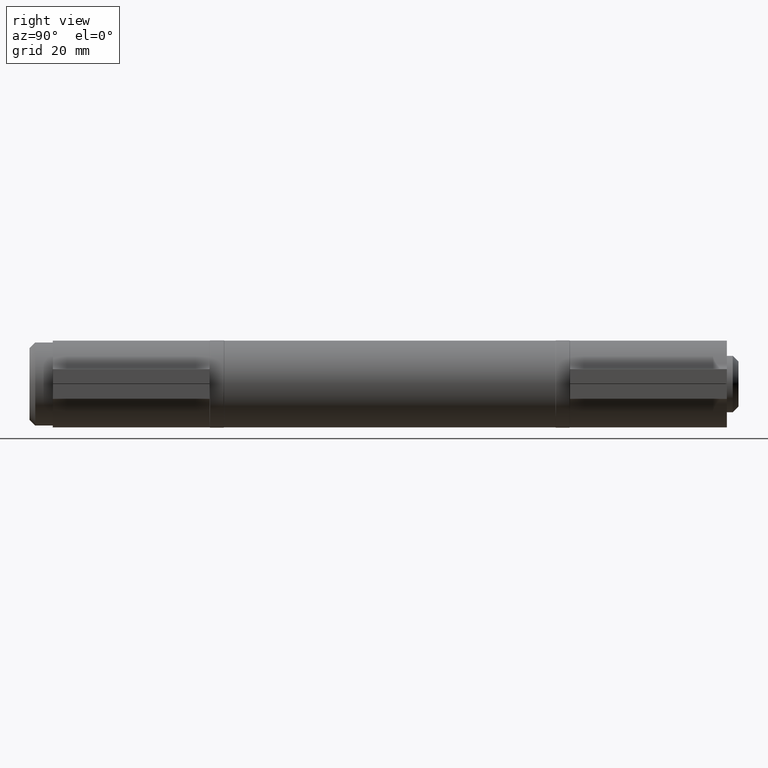
[diagram: clean part render]
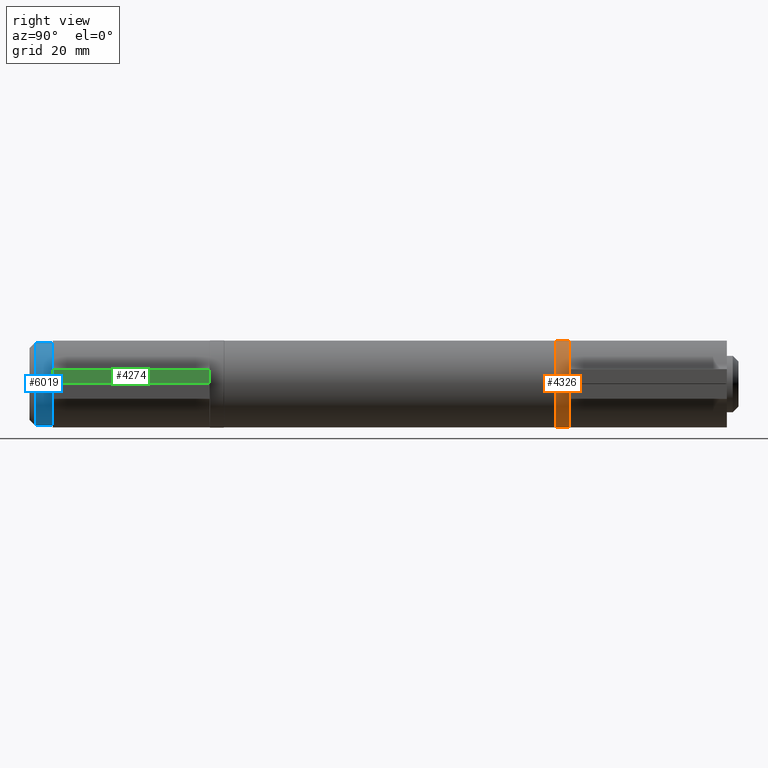
[diagram: same view with three faces highlighted in distinct colors, each labeled with its STEP entity id]
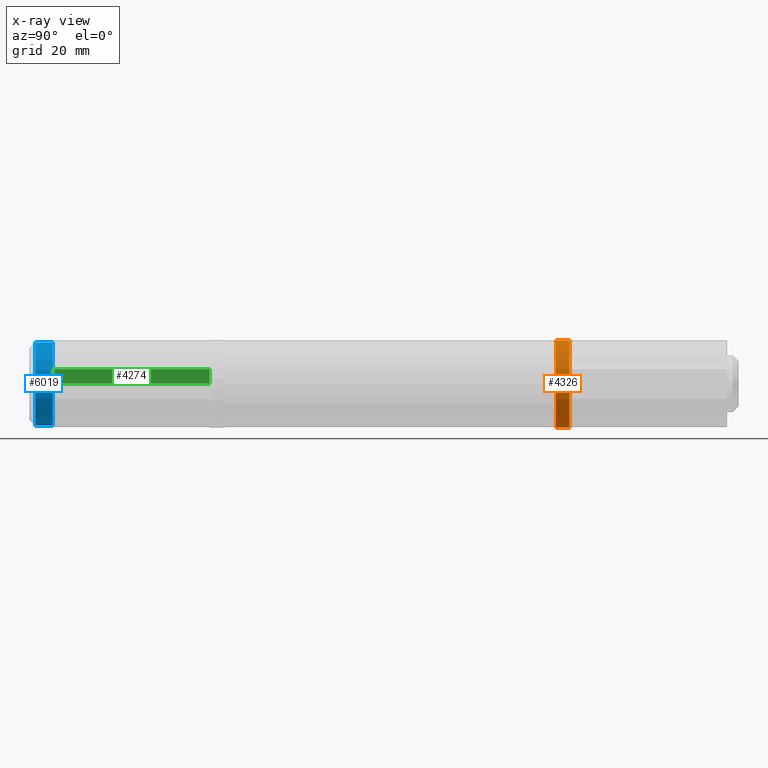
[diagram: x-ray of the same camera — body ghosted, the three highlighted faces saturated]
A machine part, right view with three faces highlighted in distinct colors.
The next image is the same camera in x-ray (body ghosted, the three faces saturated) — at least one of them is partly hidden behind the body in this view.
Their STEP definitions:

[orange] entity #4326 — the highlighted cylindrical surface (bore or boss wall) has radius 7.5 mm, axis along (-0, -1, -0).
#98 = EDGE_LOOP ( 'NONE', ( #6802 ) ) ;
#1006 = DIRECTION ( 'NONE',  ( -0.000000000000000000, -1.000000000000000000, -0.000000000000000000 ) ) ;
#1089 = CIRCLE ( 'NONE', #5492, 7.500000000000000000 ) ;
#2340 = AXIS2_PLACEMENT_3D ( 'NONE', #7539, #2903, #3666 ) ;
#2509 = VERTEX_POINT ( 'NONE', #10937 ) ;
#2783 = CARTESIAN_POINT ( 'NONE',  ( 0.000000000000000000, 1.149999999999999911, 0.000000000000000000 ) ) ;
#2903 = DIRECTION ( 'NONE',  ( 0.000000000000000000, 1.000000000000000000, 0.000000000000000000 ) ) ;
#3647 = DIRECTION ( 'NONE',  ( 0.000000000000000000, 0.000000000000000000, 1.000000000000000000 ) ) ;
#3666 = DIRECTION ( 'NONE',  ( 0.000000000000000000, 0.000000000000000000, 1.000000000000000000 ) ) ;
#3804 = EDGE_LOOP ( 'NONE', ( #6964 ) ) ;
#4326 = ADVANCED_FACE ( 'NONE', ( #9301, #4768 ), #6228, .T. ) ;
#4768 = FACE_OUTER_BOUND ( 'NONE', #3804, .T. ) ;
#5492 = AXIS2_PLACEMENT_3D ( 'NONE', #2783, #8343, #3647 ) ;
#5775 = AXIS2_PLACEMENT_3D ( 'NONE', #6484, #1006, #7417 ) ;
#6228 = CYLINDRICAL_SURFACE ( 'NONE', #5775, 7.500000000000000000 ) ;
#6484 = CARTESIAN_POINT ( 'NONE',  ( 0.000000000000000000, 1.250000000000000000, 0.000000000000000000 ) ) ;
#6802 = ORIENTED_EDGE ( 'NONE', *, *, #7026, .T. ) ;
#6964 = ORIENTED_EDGE ( 'NONE', *, *, #9818, .T. ) ;
#7026 = EDGE_CURVE ( 'NONE', #7258, #7258, #7048, .T. ) ;
#7048 = CIRCLE ( 'NONE', #2340, 7.500000000000000000 ) ;
#7142 = CARTESIAN_POINT ( 'NONE',  ( 0.000000000000000000, -1.150000000000000133, 7.500000000000000000 ) ) ;
#7258 = VERTEX_POINT ( 'NONE', #7142 ) ;
#7417 = DIRECTION ( 'NONE',  ( 0.000000000000000000, 0.000000000000000000, -1.000000000000000000 ) ) ;
#7539 = CARTESIAN_POINT ( 'NONE',  ( 0.000000000000000000, -1.150000000000000133, 0.000000000000000000 ) ) ;
#8343 = DIRECTION ( 'NONE',  ( -0.000000000000000000, -1.000000000000000000, -0.000000000000000000 ) ) ;
#9301 = FACE_OUTER_BOUND ( 'NONE', #98, .T. ) ;
#9818 = EDGE_CURVE ( 'NONE', #2509, #2509, #1089, .T. ) ;
#10937 = CARTESIAN_POINT ( 'NONE',  ( 0.000000000000000000, 1.149999999999999911, 7.500000000000000000 ) ) ;

[blue] entity #6019 — the highlighted cylindrical surface (bore or boss wall) has radius 7.15 mm, axis along (0, 1, 0).
#129 = DIRECTION ( 'NONE',  ( -0.000000000000000000, 1.000000000000000000, -0.000000000000000000 ) ) ;
#360 = VERTEX_POINT ( 'NONE', #9685 ) ;
#954 = CARTESIAN_POINT ( 'NONE',  ( 1.812477262738082717E-14, -60.00000000000000000, 0.000000000000000000 ) ) ;
#1587 = CARTESIAN_POINT ( 'NONE',  ( 1.812477262738082717E-14, -60.00000000000000000, 7.149999999999999467 ) ) ;
#1784 = ORIENTED_EDGE ( 'NONE', *, *, #4382, .F. ) ;
#2232 = VERTEX_POINT ( 'NONE', #1587 ) ;
#2793 = CARTESIAN_POINT ( 'NONE',  ( 1.812477262738082717E-14, -56.99999999999999289, 0.000000000000000000 ) ) ;
#3708 = AXIS2_PLACEMENT_3D ( 'NONE', #954, #9201, #4643 ) ;
#4382 = EDGE_CURVE ( 'NONE', #360, #360, #9871, .T. ) ;
#4643 = DIRECTION ( 'NONE',  ( 0.000000000000000000, 0.000000000000000000, 1.000000000000000000 ) ) ;
#5949 = EDGE_LOOP ( 'NONE', ( #1784 ) ) ;
#6019 = ADVANCED_FACE ( 'NONE', ( #8533, #10432 ), #7062, .T. ) ;
#6578 = DIRECTION ( 'NONE',  ( 0.000000000000000000, 0.000000000000000000, 1.000000000000000000 ) ) ;
#7062 = CYLINDRICAL_SURFACE ( 'NONE', #9686, 7.149999999999999467 ) ;
#8034 = AXIS2_PLACEMENT_3D ( 'NONE', #2793, #129, #6578 ) ;
#8354 = EDGE_CURVE ( 'NONE', #2232, #2232, #8739, .T. ) ;
#8533 = FACE_OUTER_BOUND ( 'NONE', #10859, .T. ) ;
#8657 = ORIENTED_EDGE ( 'NONE', *, *, #8354, .T. ) ;
#8739 = CIRCLE ( 'NONE', #3708, 7.149999999999999467 ) ;
#9201 = DIRECTION ( 'NONE',  ( -0.000000000000000000, 1.000000000000000000, -0.000000000000000000 ) ) ;
#9685 = CARTESIAN_POINT ( 'NONE',  ( 1.812477262738082717E-14, -56.99999999999999289, 7.149999999999999467 ) ) ;
#9686 = AXIS2_PLACEMENT_3D ( 'NONE', #10830, #9914, #9953 ) ;
#9871 = CIRCLE ( 'NONE', #8034, 7.149999999999999467 ) ;
#9914 = DIRECTION ( 'NONE',  ( -0.000000000000000000, 1.000000000000000000, -0.000000000000000000 ) ) ;
#9953 = DIRECTION ( 'NONE',  ( 0.000000000000000000, 0.000000000000000000, 1.000000000000000000 ) ) ;
#10432 = FACE_OUTER_BOUND ( 'NONE', #5949, .T. ) ;
#10830 = CARTESIAN_POINT ( 'NONE',  ( 1.812477262738082717E-14, 61.00000000000000000, 0.000000000000000000 ) ) ;
#10859 = EDGE_LOOP ( 'NONE', ( #8657 ) ) ;

[green] entity #4274 — the highlighted planar face has unit normal (-1, 0, 0).
#240 = CARTESIAN_POINT ( 'NONE',  ( 2.549999999999999822, 13.50000000000000000, -13.50000000000000178 ) ) ;
#382 = CARTESIAN_POINT ( 'NONE',  ( 0.04999999999999966971, 13.50000000000000000, -13.50000000000000178 ) ) ;
#972 = DIRECTION ( 'NONE',  ( 1.000000000000000000, 0.000000000000000000, -0.000000000000000000 ) ) ;
#1078 = LINE ( 'NONE', #240, #1370 ) ;
#1235 = CARTESIAN_POINT ( 'NONE',  ( 2.549999999999999822, -13.50000000000000000, -13.50000000000000178 ) ) ;
#1370 = VECTOR ( 'NONE', #9485, 1000.000000000000000 ) ;
#2068 = DIRECTION ( 'NONE',  ( -0.000000000000000000, -1.000000000000000000, -0.000000000000000000 ) ) ;
#2165 = VERTEX_POINT ( 'NONE', #5238 ) ;
#2189 = ORIENTED_EDGE ( 'NONE', *, *, #10225, .T. ) ;
#2652 = VECTOR ( 'NONE', #4754, 1000.000000000000000 ) ;
#3271 = VERTEX_POINT ( 'NONE', #9568 ) ;
#3464 = AXIS2_PLACEMENT_3D ( 'NONE', #10238, #11157, #972 ) ;
#3585 = EDGE_CURVE ( 'NONE', #2165, #3271, #10746, .T. ) ;
#3770 = LINE ( 'NONE', #382, #11170 ) ;
#4124 = ORIENTED_EDGE ( 'NONE', *, *, #8019, .F. ) ;
#4274 = ADVANCED_FACE ( 'NONE', ( #8410 ), #6408, .F. ) ;
#4409 = DIRECTION ( 'NONE',  ( -0.000000000000000000, -1.000000000000000000, -0.000000000000000000 ) ) ;
#4427 = EDGE_CURVE ( 'NONE', #6889, #3271, #3770, .T. ) ;
#4754 = DIRECTION ( 'NONE',  ( -1.000000000000000000, 0.000000000000000000, 0.000000000000000000 ) ) ;
#5238 = CARTESIAN_POINT ( 'NONE',  ( 2.549999999999999822, -13.50000000000000000, -13.50000000000000178 ) ) ;
#5249 = CARTESIAN_POINT ( 'NONE',  ( 2.549999999999999822, 13.50000000000000000, -13.50000000000000178 ) ) ;
#5378 = LINE ( 'NONE', #5249, #8438 ) ;
#6059 = VERTEX_POINT ( 'NONE', #10042 ) ;
#6073 = ORIENTED_EDGE ( 'NONE', *, *, #4427, .F. ) ;
#6408 = PLANE ( 'NONE',  #3464 ) ;
#6889 = VERTEX_POINT ( 'NONE', #10875 ) ;
#8019 = EDGE_CURVE ( 'NONE', #6059, #6889, #1078, .T. ) ;
#8410 = FACE_OUTER_BOUND ( 'NONE', #9564, .T. ) ;
#8438 = VECTOR ( 'NONE', #4409, 1000.000000000000000 ) ;
#9485 = DIRECTION ( 'NONE',  ( -1.000000000000000000, 0.000000000000000000, 0.000000000000000000 ) ) ;
#9564 = EDGE_LOOP ( 'NONE', ( #10159, #6073, #4124, #2189 ) ) ;
#9568 = CARTESIAN_POINT ( 'NONE',  ( 0.04999999999999966971, -13.50000000000000000, -13.50000000000000178 ) ) ;
#10042 = CARTESIAN_POINT ( 'NONE',  ( 2.549999999999999822, 13.50000000000000000, -13.50000000000000178 ) ) ;
#10159 = ORIENTED_EDGE ( 'NONE', *, *, #3585, .T. ) ;
#10225 = EDGE_CURVE ( 'NONE', #6059, #2165, #5378, .T. ) ;
#10238 = CARTESIAN_POINT ( 'NONE',  ( 2.549999999999999822, 13.50000000000000000, -13.50000000000000178 ) ) ;
#10746 = LINE ( 'NONE', #1235, #2652 ) ;
#10875 = CARTESIAN_POINT ( 'NONE',  ( 0.04999999999999966971, 13.50000000000000000, -13.50000000000000178 ) ) ;
#11157 = DIRECTION ( 'NONE',  ( 0.000000000000000000, -0.000000000000000000, 1.000000000000000000 ) ) ;
#11170 = VECTOR ( 'NONE', #2068, 1000.000000000000000 ) ;